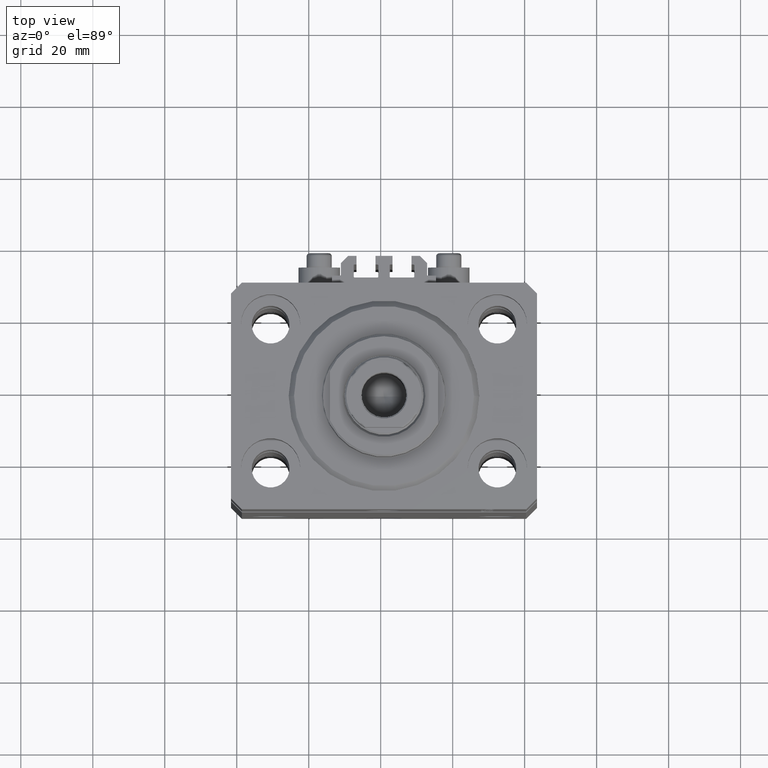
[diagram: clean part render]
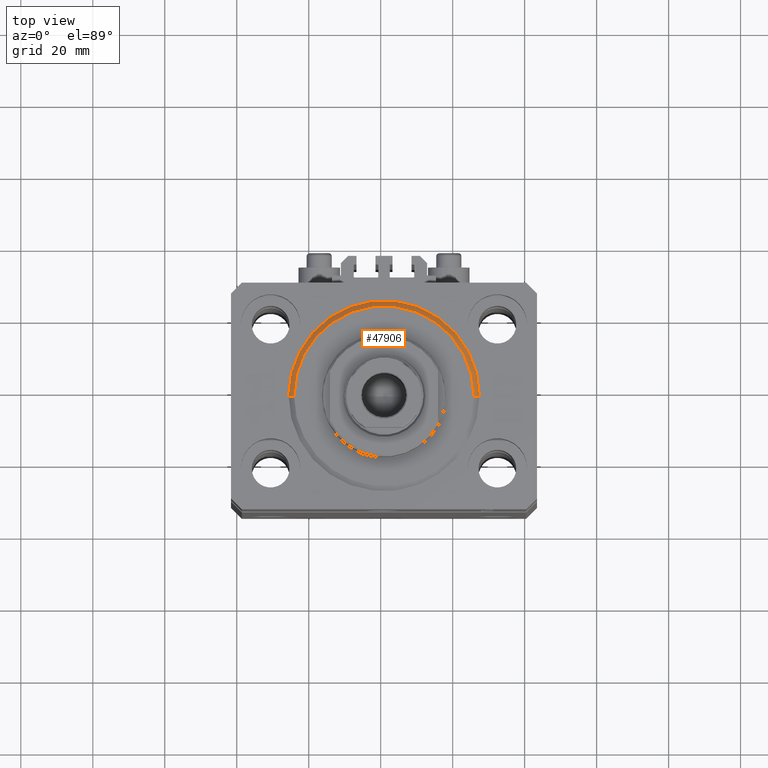
[diagram: same view with one face highlighted and labeled with its STEP entity id]
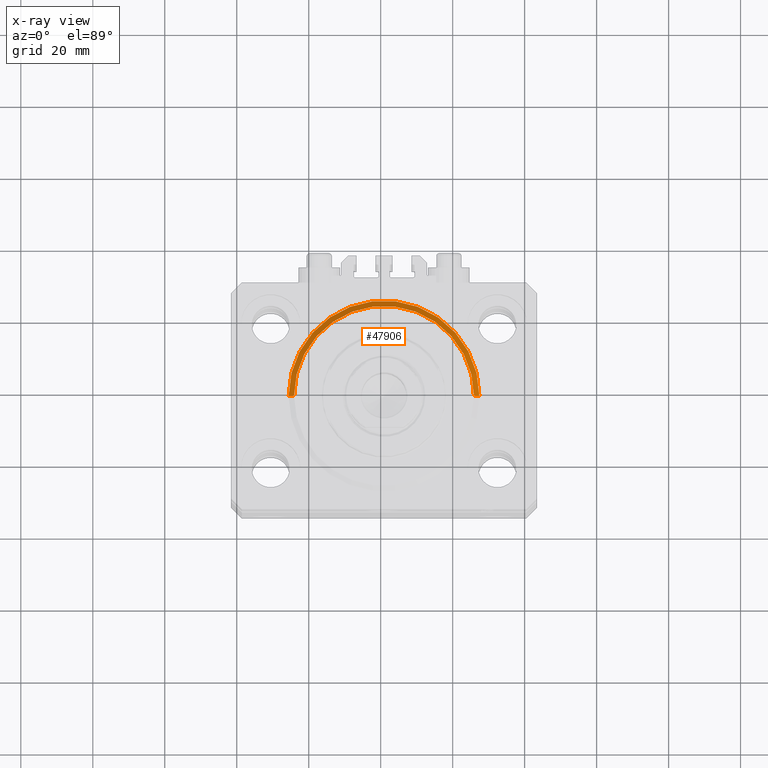
[diagram: x-ray of the same camera — body ghosted, the highlighted face saturated]
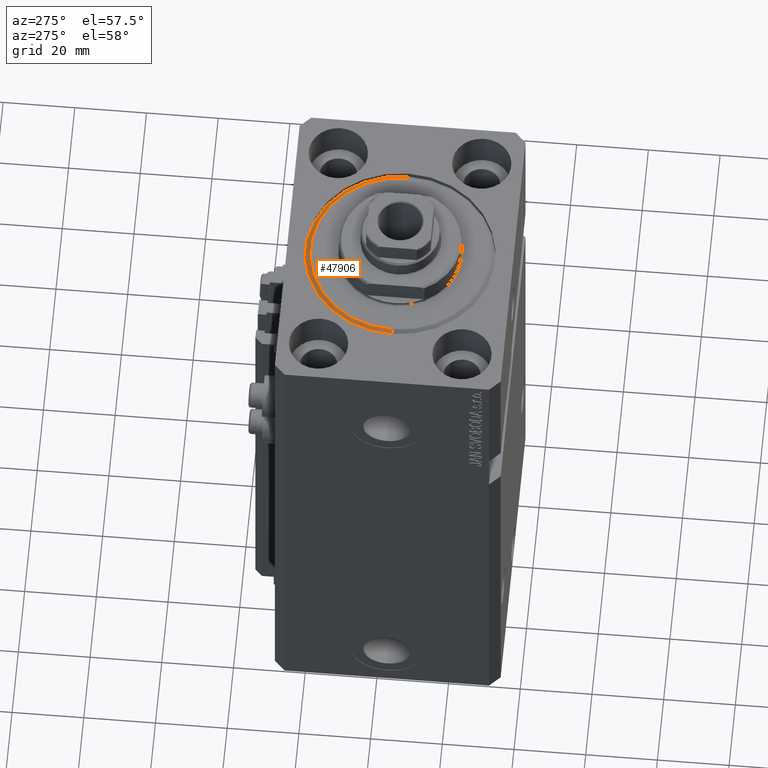
[diagram: same view with one face highlighted and labeled with its STEP entity id]
A machine part, top view. The second image highlights one B-rep face of the part: STEP entity #47906.
The next image is the same camera in x-ray: the body ghosted, the highlighted face saturated — about 0% of this face is hidden behind the body in this view.
A second angle (auxiliary view) of the same face is appended — the face is thin or edge-on in the first view.
In plain terms, the highlighted conical surface has half-angle 45 deg.
Its self-contained STEP definition (entity closure, byte-faithful):
#2042 = VERTEX_POINT ( 'NONE', #14568 ) ;
#2139 = EDGE_CURVE ( 'NONE', #9106, #24022, #32049, .T. ) ;
#3936 = DIRECTION ( 'NONE',  ( 1.000000000000000000, 0.000000000000000000, 0.000000000000000000 ) ) ;
#7116 = CARTESIAN_POINT ( 'NONE',  ( 0.000000000000000000, 0.000000000000000000, 1.500000000000018652 ) ) ;
#7723 = CARTESIAN_POINT ( 'NONE',  ( -26.50000000000000355, 0.000000000000000000, 1.500000000000018652 ) ) ;
#9106 = VERTEX_POINT ( 'NONE', #46721 ) ;
#9801 = CARTESIAN_POINT ( 'NONE',  ( 0.000000000000000000, 0.000000000000000000, 0.000000000000000000 ) ) ;
#9816 = CONICAL_SURFACE ( 'NONE', #27693, 26.50000000000000355, 0.7853981633974495002 ) ;
#10567 = LINE ( 'NONE', #25890, #42967 ) ;
#11491 = DIRECTION ( 'NONE',  ( -0.000000000000000000, -0.000000000000000000, 1.000000000000000000 ) ) ;
#14564 = VERTEX_POINT ( 'NONE', #7723 ) ;
#14568 = CARTESIAN_POINT ( 'NONE',  ( -24.99999999999998224, 3.153465507804433615E-15, 0.000000000000000000 ) ) ;
#15819 = DIRECTION ( 'NONE',  ( -0.000000000000000000, -0.000000000000000000, 1.000000000000000000 ) ) ;
#16525 = ORIENTED_EDGE ( 'NONE', *, *, #16726, .F. ) ;
#16726 = EDGE_CURVE ( 'NONE', #24022, #14564, #27346, .T. ) ;
#19663 = DIRECTION ( 'NONE',  ( -0.000000000000000000, -0.000000000000000000, -1.000000000000000000 ) ) ;
#19833 = ORIENTED_EDGE ( 'NONE', *, *, #2139, .F. ) ;
#22306 = EDGE_CURVE ( 'NONE', #2042, #9106, #44607, .T. ) ;
#23086 = VECTOR ( 'NONE', #27910, 1000.000000000000000 ) ;
#24022 = VERTEX_POINT ( 'NONE', #46169 ) ;
#25654 = DIRECTION ( 'NONE',  ( -0.7071067811865483499, 8.659560562354942719E-17, 0.7071067811865466846 ) ) ;
#25890 = CARTESIAN_POINT ( 'NONE',  ( -26.50000000000000355, 3.245314017740486554E-15, 1.500000000000018652 ) ) ;
#27346 = CIRCLE ( 'NONE', #32830, 26.50000000000000355 ) ;
#27693 = AXIS2_PLACEMENT_3D ( 'NONE', #7116, #11491, #3936 ) ;
#27910 = DIRECTION ( 'NONE',  ( 0.7071067811865483499, 0.000000000000000000, 0.7071067811865466846 ) ) ;
#29970 = FACE_OUTER_BOUND ( 'NONE', #42154, .T. ) ;
#30669 = CARTESIAN_POINT ( 'NONE',  ( 0.000000000000000000, 0.000000000000000000, 1.500000000000018652 ) ) ;
#31571 = CARTESIAN_POINT ( 'NONE',  ( 26.50000000000000355, 0.000000000000000000, 1.500000000000018652 ) ) ;
#32049 = LINE ( 'NONE', #31571, #23086 ) ;
#32830 = AXIS2_PLACEMENT_3D ( 'NONE', #30669, #15819, #45492 ) ;
#34319 = ORIENTED_EDGE ( 'NONE', *, *, #22306, .F. ) ;
#39967 = AXIS2_PLACEMENT_3D ( 'NONE', #9801, #19663, #47965 ) ;
#41038 = EDGE_CURVE ( 'NONE', #2042, #14564, #10567, .T. ) ;
#42154 = EDGE_LOOP ( 'NONE', ( #34319, #44525, #16525, #19833 ) ) ;
#42967 = VECTOR ( 'NONE', #25654, 1000.000000000000000 ) ;
#44525 = ORIENTED_EDGE ( 'NONE', *, *, #41038, .T. ) ;
#44607 = CIRCLE ( 'NONE', #39967, 24.99999999999998224 ) ;
#45492 = DIRECTION ( 'NONE',  ( 1.000000000000000000, 0.000000000000000000, 0.000000000000000000 ) ) ;
#46169 = CARTESIAN_POINT ( 'NONE',  ( 26.50000000000000355, 3.245314017740486554E-15, 1.500000000000018652 ) ) ;
#46721 = CARTESIAN_POINT ( 'NONE',  ( 24.99999999999998224, 0.000000000000000000, 0.000000000000000000 ) ) ;
#47906 = ADVANCED_FACE ( 'NONE', ( #29970 ), #9816, .T. ) ;
#47965 = DIRECTION ( 'NONE',  ( 1.000000000000000000, 0.000000000000000000, 0.000000000000000000 ) ) ;